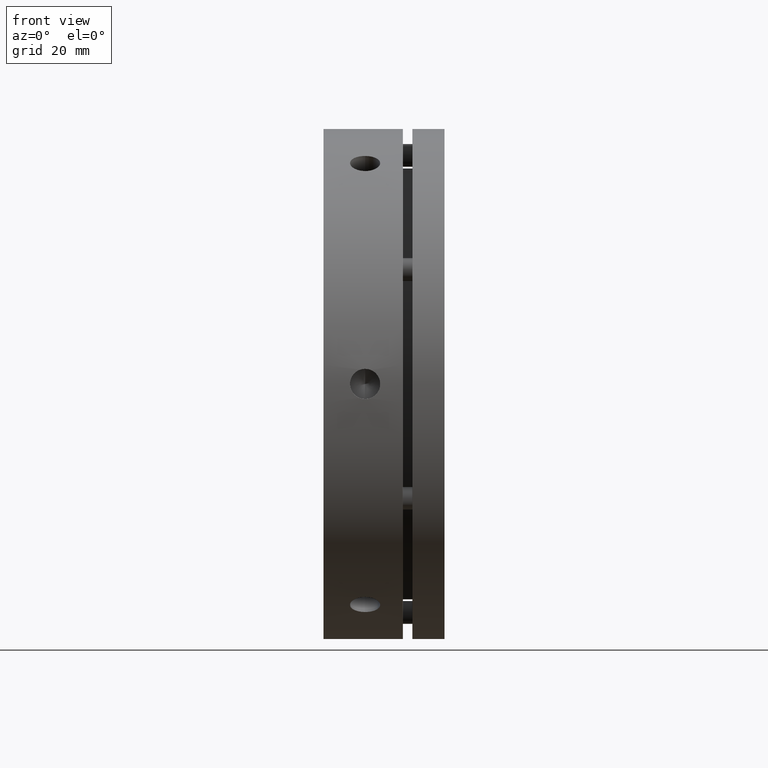
[diagram: clean part render]
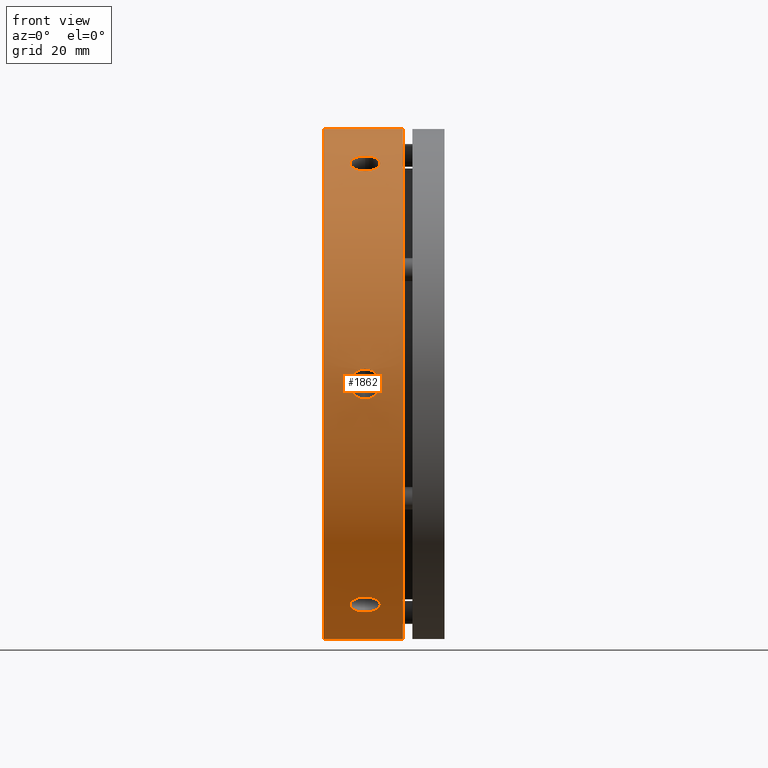
[diagram: same view with one face highlighted and labeled with its STEP entity id]
A machine part, front view. The second image highlights one B-rep face of the part: STEP entity #1862.
In plain terms, the highlighted cylindrical surface (partial cylindrical patch) has radius 67.5 mm, axis along (1, 0, 0).
Its self-contained STEP definition (entity closure, byte-faithful):
#394 = VECTOR ( 'NONE', #3730, 1000.000000000000000 ) ;
#398 = LINE ( 'NONE', #3724, #394 ) ;
#440 = VECTOR ( 'NONE', #3423, 1000.000000000000000 ) ;
#445 = LINE ( 'NONE', #3386, #440 ) ;
#568 = EDGE_CURVE ( 'NONE', #2120, #2115, #4736, .T. ) ;
#633 = EDGE_CURVE ( 'NONE', #2127, #2121, #1176, .T. ) ;
#782 = AXIS2_PLACEMENT_3D ( 'NONE', #2842, #2848, #2847 ) ;
#1003 = EDGE_CURVE ( 'NONE', #2103, #2104, #4746, .T. ) ;
#1018 = EDGE_CURVE ( 'NONE', #2114, #2122, #4484, .T. ) ;
#1022 = EDGE_CURVE ( 'NONE', #2107, #2108, #4751, .T. ) ;
#1070 = ORIENTED_EDGE ( 'NONE', *, *, #568, .T. ) ;
#1076 = ORIENTED_EDGE ( 'NONE', *, *, #633, .T. ) ;
#1081 = ORIENTED_EDGE ( 'NONE', *, *, #4285, .T. ) ;
#1092 = ORIENTED_EDGE ( 'NONE', *, *, #4269, .T. ) ;
#1098 = ORIENTED_EDGE ( 'NONE', *, *, #1003, .T. ) ;
#1144 = ORIENTED_EDGE ( 'NONE', *, *, #4347, .F. ) ;
#1146 = ORIENTED_EDGE ( 'NONE', *, *, #4270, .T. ) ;
#1148 = ORIENTED_EDGE ( 'NONE', *, *, #1018, .T. ) ;
#1176 = CIRCLE ( 'NONE', #4310, 67.50000000000000000 ) ;
#1244 = ORIENTED_EDGE ( 'NONE', *, *, #4272, .T. ) ;
#1296 = ORIENTED_EDGE ( 'NONE', *, *, #1022, .T. ) ;
#1315 = CARTESIAN_POINT ( 'NONE',  ( 11.26090793714404500, -30.22658700946592700, 60.35398443979639900 ) ) ;
#1322 = CARTESIAN_POINT ( 'NONE',  ( 11.52591283369941200, -30.24998062324704400, 60.34228449093968300 ) ) ;
#1327 = CARTESIAN_POINT ( 'NONE',  ( 10.99999999999998600, -30.22658700946592700, 60.35398443979640600 ) ) ;
#1328 = CARTESIAN_POINT ( 'NONE',  ( 12.03884198880588800, -30.34155442850207900, 60.29629093198488500 ) ) ;
#1329 = CARTESIAN_POINT ( 'NONE',  ( 12.28815119685501100, -30.40922675163503200, 60.26225193946581300 ) ) ;
#1330 = CARTESIAN_POINT ( 'NONE',  ( 12.77237875668080100, -30.58836339869727500, 60.17152237593163000 ) ) ;
#1331 = CARTESIAN_POINT ( 'NONE',  ( 13.00647556770923300, -30.70020854303621900, 60.11462567714681900 ) ) ;
#1332 = CARTESIAN_POINT ( 'NONE',  ( 13.43973112978456900, -30.95819358364240900, 59.98217464319808600 ) ) ;
#1333 = CARTESIAN_POINT ( 'NONE',  ( 13.64168093604262200, -31.10523086098995500, 59.90617268559046900 ) ) ;
#1334 = CARTESIAN_POINT ( 'NONE',  ( 14.01506595867558500, -31.43640913765133900, 59.73304858519659900 ) ) ;
#1335 = CARTESIAN_POINT ( 'NONE',  ( 14.18066491964190900, -31.61544218867688000, 59.63858461023469500 ) ) ;
#1336 = CARTESIAN_POINT ( 'NONE',  ( 14.47022002297181600, -31.99771129494706700, 59.43436237550554300 ) ) ;
#1337 = CARTESIAN_POINT ( 'NONE',  ( 14.59538461607226800, -32.20349093996196600, 59.32321567184563100 ) ) ;
#1338 = CARTESIAN_POINT ( 'NONE',  ( 14.79605033172389000, -32.62868623531968400, 59.09041868971299000 ) ) ;
#1339 = CARTESIAN_POINT ( 'NONE',  ( 14.87163962980802600, -32.84679003136334800, 58.96951817546114000 ) ) ;
#1340 = CARTESIAN_POINT ( 'NONE',  ( 14.97386132053187100, -33.29365371387105900, 58.71838137748136400 ) ) ;
#1341 = CARTESIAN_POINT ( 'NONE',  ( 15.00018324290823200, -33.52356061336501400, 58.58746213498268700 ) ) ;
#1342 = CARTESIAN_POINT ( 'NONE',  ( 14.99981481338055800, -33.98126887678008500, 58.32317893547953200 ) ) ;
#1343 = CARTESIAN_POINT ( 'NONE',  ( 14.97370272124640600, -34.20551458355013400, 58.19190758741443400 ) ) ;
#1344 = CARTESIAN_POINT ( 'NONE',  ( 14.87173392605369500, -34.64525160932046800, 57.93118225545304500 ) ) ;
#1345 = CARTESIAN_POINT ( 'NONE',  ( 14.79463212785195700, -34.86301030844568800, 57.80033863928942800 ) ) ;
#1346 = CARTESIAN_POINT ( 'NONE',  ( 14.59355659696136200, -35.27680719089368500, 57.54872291371749100 ) ) ;
#1347 = CARTESIAN_POINT ( 'NONE',  ( 14.47055934273477000, -35.47240792593640200, 57.42826428411591900 ) ) ;
#1348 = CARTESIAN_POINT ( 'NONE',  ( 14.18002743435036600, -35.84159123671504700, 57.19858040520351500 ) ) ;
#1349 = CARTESIAN_POINT ( 'NONE',  ( 14.01100402945903100, -36.01578113025335900, 57.08894412492419000 ) ) ;
#1350 = CARTESIAN_POINT ( 'NONE',  ( 13.64185372173521000, -36.32728791053472900, 56.89123117657188500 ) ) ;
#1351 = CARTESIAN_POINT ( 'NONE',  ( 13.44043357950982700, -36.46670496601903000, 56.80185577039633000 ) ) ;
#1352 = CARTESIAN_POINT ( 'NONE',  ( 13.00304389669707600, -36.71250841156247400, 56.64329718660927400 ) ) ;
#1353 = CARTESIAN_POINT ( 'NONE',  ( 12.77029148319261900, -36.81665183097442200, 56.57556097149676300 ) ) ;
#1354 = CARTESIAN_POINT ( 'NONE',  ( 12.28893648643766700, -36.98371311033363900, 56.46649374501019000 ) ) ;
#1355 = CARTESIAN_POINT ( 'NONE',  ( 12.03677718526620000, -37.04790109451409600, 56.42433569025841000 ) ) ;
#1356 = CARTESIAN_POINT ( 'NONE',  ( 11.52045896052088200, -37.13365425629004300, 56.36793729745820500 ) ) ;
#1357 = CARTESIAN_POINT ( 'NONE',  ( 11.26090770552999500, -37.15479023974144500, 56.35398443979641300 ) ) ;
#1358 = CARTESIAN_POINT ( 'NONE',  ( 10.99999999999998600, -37.15479023974143800, 56.35398443979640600 ) ) ;
#1480 = CARTESIAN_POINT ( 'NONE',  ( 20.99999999999998600, 0.0000000000000000000, 0.0000000000000000000 ) ) ;
#1481 = DIRECTION ( 'NONE',  ( -1.000000000000000000, -0.0000000000000000000, -0.0000000000000000000 ) ) ;
#1482 = DIRECTION ( 'NONE',  ( 0.0000000000000000000, 0.0000000000000000000, -1.000000000000000000 ) ) ;
#1610 = CARTESIAN_POINT ( 'NONE',  ( 11.26090793714404700, -37.15479023974145900, -56.35398443979638500 ) ) ;
#1617 = CARTESIAN_POINT ( 'NONE',  ( 11.52591283369941200, -37.13296097991798900, -56.36839392918877700 ) ) ;
#1621 = CARTESIAN_POINT ( 'NONE',  ( 10.99999999999998600, -37.15479023974146600, -56.35398443979639200 ) ) ;
#1622 = CARTESIAN_POINT ( 'NONE',  ( 12.03884198880588800, -37.04734248682517300, -56.42470239138347700 ) ) ;
#1623 = CARTESIAN_POINT ( 'NONE',  ( 12.28815119685501000, -36.98402769301793600, -56.46628884609018000 ) ) ;
#1624 = CARTESIAN_POINT ( 'NONE',  ( 12.77237875668080100, -36.81588526259196200, -56.57606095142775600 ) ) ;
#1625 = CARTESIAN_POINT ( 'NONE',  ( 13.00647556770923300, -36.71068870388337000, -56.64447333832281800 ) ) ;
#1626 = CARTESIAN_POINT ( 'NONE',  ( 13.43973112978456900, -36.46699022342315300, -56.80166942030976400 ) ) ;
#1627 = CARTESIAN_POINT ( 'NONE',  ( 13.64168093604262200, -36.32765195872384100, -56.89100645899225100 ) ) ;
#1628 = CARTESIAN_POINT ( 'NONE',  ( 14.01506595867558500, -36.01213295144473400, -57.09125320956561500 ) ) ;
#1629 = CARTESIAN_POINT ( 'NONE',  ( 14.18066491964190800, -35.84080822387248600, -57.19906839238982600 ) ) ;
#1630 = CARTESIAN_POINT ( 'NONE',  ( 14.47022002297181100, -35.47281202744432700, -57.42801203213720400 ) ) ;
#1631 = CARTESIAN_POINT ( 'NONE',  ( 14.59538461607227000, -35.27366633602049000, -57.55064908047187100 ) ) ;
#1632 = CARTESIAN_POINT ( 'NONE',  ( 14.79605033172389000, -34.85946058789038900, -57.80248051675495400 ) ) ;
#1633 = CARTESIAN_POINT ( 'NONE',  ( 14.87163962980802800, -34.64570577319586400, -57.93091368766469200 ) ) ;
#1634 = CARTESIAN_POINT ( 'NONE',  ( 14.97386132053187400, -34.20478308506646700, -58.19234058975514000 ) ) ;
#1635 = CARTESIAN_POINT ( 'NONE',  ( 15.00018324290823600, -33.97645024547137600, -58.32598618397286600 ) ) ;
#1636 = CARTESIAN_POINT ( 'NONE',  ( 14.99981481338055800, -33.51872014920068900, -58.59023156786080500 ) ) ;
#1637 = CARTESIAN_POINT ( 'NONE',  ( 14.97370272124640600, -33.29291297360227700, -58.71879837258071400 ) ) ;
#1638 = CARTESIAN_POINT ( 'NONE',  ( 14.87173392605369700, -32.84724969982841700, -58.96925914190175900 ) ) ;
#1639 = CARTESIAN_POINT ( 'NONE',  ( 14.79463212785195500, -32.62505645474507800, -59.09242189915740100 ) ) ;
#1640 = CARTESIAN_POINT ( 'NONE',  ( 14.59355659696135800, -32.20025240318413800, -59.32497264857820300 ) ) ;
#1641 = CARTESIAN_POINT ( 'NONE',  ( 14.47055934273477200, -31.99813180232276400, -59.43413853932334200 ) ) ;
#1642 = CARTESIAN_POINT ( 'NONE',  ( 14.18002743435036800, -31.61462807295555800, -59.63901872565468700 ) ) ;
#1643 = CARTESIAN_POINT ( 'NONE',  ( 14.01100402945902900, -31.43258532228806200, -59.73505345840170800 ) ) ;
#1644 = CARTESIAN_POINT ( 'NONE',  ( 13.64185372173520400, -31.10560749621716100, -59.90596976940034300 ) ) ;
#1645 = CARTESIAN_POINT ( 'NONE',  ( 13.44043357950982000, -30.95849759625342700, -59.98202077808279900 ) ) ;
#1646 = CARTESIAN_POINT ( 'NONE',  ( 13.00304389669707000, -30.69828011193403900, -60.11561351436763800 ) ) ;
#1647 = CARTESIAN_POINT ( 'NONE',  ( 12.77029148319261200, -30.58754711918441100, -60.17193625365909100 ) ) ;
#1648 = CARTESIAN_POINT ( 'NONE',  ( 12.28893648643766300, -30.40956149064712500, -60.26208195232962300 ) ) ;
#1649 = CARTESIAN_POINT ( 'NONE',  ( 12.03677718526620500, -30.34095755216771900, -60.29659134987169700 ) ) ;
#1650 = CARTESIAN_POINT ( 'NONE',  ( 11.52045896052088700, -30.24923853038215100, -60.34265657002443100 ) ) ;
#1651 = CARTESIAN_POINT ( 'NONE',  ( 11.26090770552999700, -30.22658700946595500, -60.35398443979639900 ) ) ;
#1652 = CARTESIAN_POINT ( 'NONE',  ( 10.99999999999998600, -30.22658700946595200, -60.35398443979639200 ) ) ;
#1694 = CARTESIAN_POINT ( 'NONE',  ( -1.734723475976807100E-014, 0.0000000000000000000, 0.0000000000000000000 ) ) ;
#1695 = DIRECTION ( 'NONE',  ( 1.000000000000000000, 0.0000000000000000000, 0.0000000000000000000 ) ) ;
#1696 = DIRECTION ( 'NONE',  ( 0.0000000000000000000, 0.0000000000000000000, -1.000000000000000000 ) ) ;
#1697 = CARTESIAN_POINT ( 'NONE',  ( 11.26090793714404500, -67.38137724920736100, 4.000000000000009800 ) ) ;
#1704 = CARTESIAN_POINT ( 'NONE',  ( 11.52591283369941200, -67.38294160316502300, 3.973890561750877300 ) ) ;
#1708 = CARTESIAN_POINT ( 'NONE',  ( 10.99999999999998600, -67.38137724920737500, 4.000000000000009800 ) ) ;
#1709 = CARTESIAN_POINT ( 'NONE',  ( 12.03884198880588800, -67.38889691532723700, 3.871588540601420500 ) ) ;
#1710 = CARTESIAN_POINT ( 'NONE',  ( 12.28815119685501100, -67.39325444465296800, 3.795963093375624500 ) ) ;
#1711 = CARTESIAN_POINT ( 'NONE',  ( 12.77237875668080100, -67.40424866128921600, 3.595461424503875400 ) ) ;
#1712 = CARTESIAN_POINT ( 'NONE',  ( 13.00647556770923400, -67.41089724691957500, 3.470152338824002300 ) ) ;
#1713 = CARTESIAN_POINT ( 'NONE',  ( 13.43973112978457100, -67.42518380706556500, 3.180505222888316800 ) ) ;
#1714 = CARTESIAN_POINT ( 'NONE',  ( 13.64168093604262700, -67.43288281971376800, 3.015166226598228000 ) ) ;
#1715 = CARTESIAN_POINT ( 'NONE',  ( 14.01506595867558900, -67.44854208909605100, 2.641795375630985100 ) ) ;
#1716 = CARTESIAN_POINT ( 'NONE',  ( 14.18066491964191100, -67.45625041254935200, 2.439516217844869500 ) ) ;
#1717 = CARTESIAN_POINT ( 'NONE',  ( 14.47022002297181600, -67.47052332239138700, 2.006350343368344700 ) ) ;
#1718 = CARTESIAN_POINT ( 'NONE',  ( 14.59538461607227200, -67.47715727598243500, 1.772566591373748300 ) ) ;
#1719 = CARTESIAN_POINT ( 'NONE',  ( 14.79605033172388500, -67.48814682321005900, 1.287938172958012600 ) ) ;
#1720 = CARTESIAN_POINT ( 'NONE',  ( 14.87163962980802600, -67.49249580455918400, 1.038604487796452600 ) ) ;
#1721 = CARTESIAN_POINT ( 'NONE',  ( 14.97386132053187400, -67.49843679893750400, 0.5260407877262315300 ) ) ;
#1722 = CARTESIAN_POINT ( 'NONE',  ( 15.00018324290823600, -67.50001085883636200, 0.2614759510097940900 ) ) ;
#1723 = CARTESIAN_POINT ( 'NONE',  ( 14.99981481338055600, -67.49998902598073900, -0.2670526323812898500 ) ) ;
#1724 = CARTESIAN_POINT ( 'NONE',  ( 14.97370272124640400, -67.49842755715238200, -0.5268907851662810700 ) ) ;
#1725 = CARTESIAN_POINT ( 'NONE',  ( 14.87173392605369100, -67.49250130914884900, -1.038076886448712900 ) ) ;
#1726 = CARTESIAN_POINT ( 'NONE',  ( 14.79463212785195300, -67.48806676319074400, -1.292083259868005200 ) ) ;
#1727 = CARTESIAN_POINT ( 'NONE',  ( 14.59355659696135500, -67.47705959407780100, -1.776249734860747800 ) ) ;
#1728 = CARTESIAN_POINT ( 'NONE',  ( 14.47055934273477000, -67.47053972825912600, -2.005874255207424900 ) ) ;
#1729 = CARTESIAN_POINT ( 'NONE',  ( 14.18002743435036500, -67.45621930967055800, -2.440438320451179300 ) ) ;
#1730 = CARTESIAN_POINT ( 'NONE',  ( 14.01100402945902700, -67.44836645254137900, -2.646109333477535400 ) ) ;
#1731 = CARTESIAN_POINT ( 'NONE',  ( 13.64185372173520400, -67.43289540675186800, -3.014738592828453800 ) ) ;
#1732 = CARTESIAN_POINT ( 'NONE',  ( 13.44043357950982000, -67.42520256227244600, -3.180165007686465800 ) ) ;
#1733 = CARTESIAN_POINT ( 'NONE',  ( 13.00304389669706500, -67.41078852349647800, -3.472316327758345500 ) ) ;
#1734 = CARTESIAN_POINT ( 'NONE',  ( 12.77029148319261200, -67.40419895015880100, -3.596375282162336300 ) ) ;
#1735 = CARTESIAN_POINT ( 'NONE',  ( 12.28893648643766300, -67.39327460098073200, -3.795588207319422900 ) ) ;
#1736 = CARTESIAN_POINT ( 'NONE',  ( 12.03677718526620100, -67.38885864668178300, -3.872255659613306200 ) ) ;
#1737 = CARTESIAN_POINT ( 'NONE',  ( 11.52045896052088200, -67.38289278667218700, -3.974719272566217500 ) ) ;
#1738 = CARTESIAN_POINT ( 'NONE',  ( 11.26090770552999300, -67.38137724920736100, -3.999999999999990700 ) ) ;
#1739 = CARTESIAN_POINT ( 'NONE',  ( 10.99999999999998600, -67.38137724920737500, -3.999999999999990700 ) ) ;
#1862 = ADVANCED_FACE ( 'NONE', ( #4378, #4374, #4377, #4375 ), #4367, .T. ) ;
#2103 = VERTEX_POINT ( 'NONE', #3273 ) ;
#2104 = VERTEX_POINT ( 'NONE', #3274 ) ;
#2107 = VERTEX_POINT ( 'NONE', #3277 ) ;
#2108 = VERTEX_POINT ( 'NONE', #3278 ) ;
#2114 = VERTEX_POINT ( 'NONE', #3284 ) ;
#2115 = VERTEX_POINT ( 'NONE', #3285 ) ;
#2120 = VERTEX_POINT ( 'NONE', #3290 ) ;
#2121 = VERTEX_POINT ( 'NONE', #3291 ) ;
#2122 = VERTEX_POINT ( 'NONE', #3292 ) ;
#2127 = VERTEX_POINT ( 'NONE', #3297 ) ;
#2141 = EDGE_LOOP ( 'NONE', ( #1146, #1070 ) ) ;
#2143 = EDGE_LOOP ( 'NONE', ( #1092, #1296 ) ) ;
#2144 = EDGE_LOOP ( 'NONE', ( #1081, #1098 ) ) ;
#2146 = EDGE_LOOP ( 'NONE', ( #1144, #1148, #1244, #1076 ) ) ;
#2710 = AXIS2_PLACEMENT_3D ( 'NONE', #1694, #1695, #1696 ) ;
#2842 = CARTESIAN_POINT ( 'NONE',  ( 15.99999999999998200, 0.0000000000000000000, 0.0000000000000000000 ) ) ;
#2847 = DIRECTION ( 'NONE',  ( 0.0000000000000000000, 0.0000000000000000000, -1.000000000000000000 ) ) ;
#2848 = DIRECTION ( 'NONE',  ( 1.000000000000000000, 0.0000000000000000000, 0.0000000000000000000 ) ) ;
#3273 = CARTESIAN_POINT ( 'NONE',  ( 10.99999999999998600, -37.15479023974146600, -56.35398443979639200 ) ) ;
#3274 = CARTESIAN_POINT ( 'NONE',  ( 10.99999999999998600, -30.22658700946595200, -60.35398443979639200 ) ) ;
#3277 = CARTESIAN_POINT ( 'NONE',  ( 10.99999999999998600, -67.38137724920737500, 4.000000000000009800 ) ) ;
#3278 = CARTESIAN_POINT ( 'NONE',  ( 10.99999999999998600, -67.38137724920737500, -3.999999999999990700 ) ) ;
#3284 = CARTESIAN_POINT ( 'NONE',  ( -1.734723475976807100E-014, 8.266365894244635100E-015, 67.50000000000000000 ) ) ;
#3285 = CARTESIAN_POINT ( 'NONE',  ( 10.99999999999998600, -37.15479023974143800, 56.35398443979640600 ) ) ;
#3290 = CARTESIAN_POINT ( 'NONE',  ( 10.99999999999998600, -30.22658700946592700, 60.35398443979640600 ) ) ;
#3291 = CARTESIAN_POINT ( 'NONE',  ( 20.99999999999998600, 8.266365894244635100E-015, 67.50000000000000000 ) ) ;
#3292 = CARTESIAN_POINT ( 'NONE',  ( -1.734723475976807100E-014, 0.0000000000000000000, -67.50000000000000000 ) ) ;
#3297 = CARTESIAN_POINT ( 'NONE',  ( 20.99999999999998600, 0.0000000000000000000, -67.50000000000000000 ) ) ;
#3346 = CARTESIAN_POINT ( 'NONE',  ( 10.73909229457169600, -67.38137724920738900, -3.999999999999990700 ) ) ;
#3351 = CARTESIAN_POINT ( 'NONE',  ( 10.99999999999998600, -67.38137724920737500, -3.999999999999990700 ) ) ;
#3352 = CARTESIAN_POINT ( 'NONE',  ( 10.99999999999998600, -37.15479023974143800, 56.35398443979640600 ) ) ;
#3353 = CARTESIAN_POINT ( 'NONE',  ( 10.73909229457170000, -37.15479023974143800, 56.35398443979639900 ) ) ;
#3354 = CARTESIAN_POINT ( 'NONE',  ( 10.47408763467157100, -67.38294160032730000, -3.973890608714793600 ) ) ;
#3355 = CARTESIAN_POINT ( 'NONE',  ( 9.961158909440495500, -67.38889690229801500, -3.871588766204661100 ) ) ;
#3356 = CARTESIAN_POINT ( 'NONE',  ( 9.711849904074711000, -67.39325442428891200, -3.795963450220726500 ) ) ;
#3357 = CARTESIAN_POINT ( 'NONE',  ( 9.227622722682749400, -67.40424862306865400, -3.595462136067280500 ) ) ;
#3358 = CARTESIAN_POINT ( 'NONE',  ( 8.993526050400468800, -67.41089719912021400, -3.470153257375516300 ) ) ;
#3359 = CARTESIAN_POINT ( 'NONE',  ( 8.560270715125978900, -67.42518374067221000, -3.180506619490605800 ) ) ;
#3360 = CARTESIAN_POINT ( 'NONE',  ( 8.358320997279008700, -67.43288274413103500, -3.015167897203705900 ) ) ;
#3361 = CARTESIAN_POINT ( 'NONE',  ( 7.984936087301695000, -67.44854199779239000, -2.641797684170610800 ) ) ;
#3362 = CARTESIAN_POINT ( 'NONE',  ( 7.819337065288737100, -67.45625031883602700, -2.439518780513390900 ) ) ;
#3363 = CARTESIAN_POINT ( 'NONE',  ( 7.529781849465393000, -67.47052322596523800, -2.006353551202726000 ) ) ;
#3364 = CARTESIAN_POINT ( 'NONE',  ( 7.404617164997528500, -67.47715718081893500, -1.772570174284384000 ) ) ;
#3365 = CARTESIAN_POINT ( 'NONE',  ( 7.203951095060022100, -67.48814674269408400, -1.287942337333857000 ) ) ;
#3366 = CARTESIAN_POINT ( 'NONE',  ( 7.128361585335441400, -67.49249573465603200, -1.038608952718378400 ) ) ;
#3367 = CARTESIAN_POINT ( 'NONE',  ( 7.026139370803330800, -67.49843675803855100, -0.5260458823085083500 ) ) ;
#3368 = CARTESIAN_POINT ( 'NONE',  ( 6.999817124770879100, -67.50001083704798100, -0.2614818767405222000 ) ) ;
#3369 = CARTESIAN_POINT ( 'NONE',  ( 7.000184811102104600, -67.49998904823363000, 0.2670473025547198100 ) ) ;
#3370 = CARTESIAN_POINT ( 'NONE',  ( 7.026296595522172300, -67.49842759757579800, 0.5268857423858576100 ) ) ;
#3371 = CARTESIAN_POINT ( 'NONE',  ( 7.128264857095052400, -67.49250137915493000, 1.038072403776828100 ) ) ;
#3372 = CARTESIAN_POINT ( 'NONE',  ( 7.205366418610818600, -67.48806684514468700, 1.292079044559674800 ) ) ;
#3373 = CARTESIAN_POINT ( 'NONE',  ( 7.406441644998075400, -67.47705968793037800, 1.776246217052297700 ) ) ;
#3374 = CARTESIAN_POINT ( 'NONE',  ( 7.529438794384551800, -67.47053982423439300, 2.005871059801216800 ) ) ;
#3375 = CARTESIAN_POINT ( 'NONE',  ( 7.819970561549339100, -67.45621940430018500, 2.440435731802457200 ) ) ;
#3376 = CARTESIAN_POINT ( 'NONE',  ( 7.988993962148468200, -67.44836654208234000, 2.646107071953352400 ) ) ;
#3377 = CARTESIAN_POINT ( 'NONE',  ( 8.358144355942116000, -67.43289548194677300, 3.014736929182944400 ) ) ;
#3378 = CARTESIAN_POINT ( 'NONE',  ( 8.559564572804667600, -67.42520262882160900, 3.180163607477054700 ) ) ;
#3379 = CARTESIAN_POINT ( 'NONE',  ( 8.996954457991631000, -67.41078857205796700, 3.472315394844187200 ) ) ;
#3380 = CARTESIAN_POINT ( 'NONE',  ( 9.229707056351237800, -67.40419898787723700, 3.596374580006900700 ) ) ;
#3381 = CARTESIAN_POINT ( 'NONE',  ( 9.711062411282048500, -67.39327462142367200, 3.795587848863778200 ) ) ;
#3382 = CARTESIAN_POINT ( 'NONE',  ( 9.963221900934721400, -67.38885865987282400, 3.872255431270556600 ) ) ;
#3383 = CARTESIAN_POINT ( 'NONE',  ( 10.47954057883766200, -67.38289278936230200, 3.974719228150472200 ) ) ;
#3384 = CARTESIAN_POINT ( 'NONE',  ( 10.73909206295764600, -67.38137724920740400, 4.000000000000010700 ) ) ;
#3385 = CARTESIAN_POINT ( 'NONE',  ( 10.99999999999998600, -67.38137724920737500, 4.000000000000009800 ) ) ;
#3386 = CARTESIAN_POINT ( 'NONE',  ( 15.99999999999998200, 0.0000000000000000000, -67.50000000000000000 ) ) ;
#3388 = CARTESIAN_POINT ( 'NONE',  ( 10.47408763467157300, -37.13296101917107700, 56.36839390324930600 ) ) ;
#3389 = CARTESIAN_POINT ( 'NONE',  ( 9.961158909440495500, -37.04734267568868900, 56.42470226729820100 ) ) ;
#3390 = CARTESIAN_POINT ( 'NONE',  ( 9.711849904074711000, -36.98402799187283600, 56.46628865003184200 ) ) ;
#3391 = CARTESIAN_POINT ( 'NONE',  ( 9.227622722682754700, -36.81588585971366700, 56.57606056254610400 ) ) ;
#3392 = CARTESIAN_POINT ( 'NONE',  ( 8.993526050400472400, -36.71068947547263400, 56.64447283765162000 ) ) ;
#3393 = CARTESIAN_POINT ( 'NONE',  ( 8.560270715125977100, -36.46699139971953200, 56.80166866451030200 ) ) ;
#3394 = CARTESIAN_POINT ( 'NONE',  ( 8.358320997279006900, -36.32765336771923600, 56.89100555823292600 ) ) ;
#3395 = CARTESIAN_POINT ( 'NONE',  ( 7.984936087301691500, -36.01213490504684200, 57.09125197622452000 ) ) ;
#3396 = CARTESIAN_POINT ( 'NONE',  ( 7.819337065288733500, -35.84081039635184100, 57.19906702989742800 ) ) ;
#3397 = CARTESIAN_POINT ( 'NONE',  ( 7.529781849465386800, -35.47281475729730700, 57.42801034471254000 ) ) ;
#3398 = CARTESIAN_POINT ( 'NONE',  ( 7.404617164997530300, -35.27366939133035100, 57.55064720660254100 ) ) ;
#3399 = CARTESIAN_POINT ( 'NONE',  ( 7.203951095060025600, -34.85946415408767500, 57.80247836483814400 ) ) ;
#3400 = CARTESIAN_POINT ( 'NONE',  ( 7.128361585335437800, -34.64570960498007000, 57.93091139466579900 ) ) ;
#3401 = CARTESIAN_POINT ( 'NONE',  ( 7.026139370803330000, -34.20478747665465100, 58.19233800704449100 ) ) ;
#3402 = CARTESIAN_POINT ( 'NONE',  ( 6.999817124770880000, -33.97645536641051200, 58.32598320223822700 ) ) ;
#3403 = CARTESIAN_POINT ( 'NONE',  ( 7.000184811102105400, -33.51872477609230600, 58.59022892221906900 ) ) ;
#3404 = CARTESIAN_POINT ( 'NONE',  ( 7.026296595522172300, -33.29291736098993200, 58.71879588619820100 ) ) ;
#3405 = CARTESIAN_POINT ( 'NONE',  ( 7.128264857095056000, -32.84725361693915600, 58.96925696119284100 ) ) ;
#3406 = CARTESIAN_POINT ( 'NONE',  ( 7.205366418610818600, -32.62506014628614500, 59.09241986247746300 ) ) ;
#3407 = CARTESIAN_POINT ( 'NONE',  ( 7.406441644998075400, -32.20025549662188500, 59.32497097095269100 ) ) ;
#3408 = CARTESIAN_POINT ( 'NONE',  ( 7.529438794384552700, -31.99813461761332400, 59.43413702473723200 ) ) ;
#3409 = CARTESIAN_POINT ( 'NONE',  ( 7.819970561549344400, -31.61463036210591300, 59.63901751328200600 ) ) ;
#3410 = CARTESIAN_POINT ( 'NONE',  ( 7.988993962148473600, -31.43258732559592900, 59.73505240518436200 ) ) ;
#3411 = CARTESIAN_POINT ( 'NONE',  ( 8.358144355942116000, -31.10560897457386900, 59.90596900269827100 ) ) ;
#3412 = CARTESIAN_POINT ( 'NONE',  ( 8.559564572804665900, -30.95849884214492300, 59.98202013561136400 ) ) ;
#3413 = CARTESIAN_POINT ( 'NONE',  ( 8.996954457991625600, -30.69828094414213400, 60.11561308996602500 ) ) ;
#3414 = CARTESIAN_POINT ( 'NONE',  ( 9.229707056351232500, -30.58754774612804900, 60.17193593524646600 ) ) ;
#3415 = CARTESIAN_POINT ( 'NONE',  ( 9.711062411282048500, -30.40956181130026400, 60.26208179080586500 ) ) ;
#3416 = CARTESIAN_POINT ( 'NONE',  ( 9.963221900934719600, -30.34095775651384800, 60.29659124712411300 ) ) ;
#3417 = CARTESIAN_POINT ( 'NONE',  ( 10.47954057883765300, -30.24923857019236800, 60.34265655014625900 ) ) ;
#3418 = CARTESIAN_POINT ( 'NONE',  ( 10.73909206295764400, -30.22658700946593100, 60.35398443979641300 ) ) ;
#3419 = CARTESIAN_POINT ( 'NONE',  ( 10.99999999999998600, -30.22658700946592700, 60.35398443979640600 ) ) ;
#3423 = DIRECTION ( 'NONE',  ( 1.000000000000000000, 0.0000000000000000000, 0.0000000000000000000 ) ) ;
#3639 = CARTESIAN_POINT ( 'NONE',  ( 10.73909229457170000, -30.22658700946595900, -60.35398443979639200 ) ) ;
#3643 = CARTESIAN_POINT ( 'NONE',  ( 10.99999999999998600, -30.22658700946595200, -60.35398443979639200 ) ) ;
#3645 = CARTESIAN_POINT ( 'NONE',  ( 10.47408763467157300, -30.24998058115624700, -60.34228451196408100 ) ) ;
#3646 = CARTESIAN_POINT ( 'NONE',  ( 9.961158909440499100, -30.34155422660932200, -60.29629103350284000 ) ) ;
#3647 = CARTESIAN_POINT ( 'NONE',  ( 9.711849904074714600, -30.40922643241608700, -60.26225210025256700 ) ) ;
#3648 = CARTESIAN_POINT ( 'NONE',  ( 9.227622722682751200, -30.58836276335501800, -60.17152269861336600 ) ) ;
#3649 = CARTESIAN_POINT ( 'NONE',  ( 8.993526050400468800, -30.70020772364760500, -60.11462609502712700 ) ) ;
#3650 = CARTESIAN_POINT ( 'NONE',  ( 8.560270715125973600, -30.95819234095268200, -59.98217528400089500 ) ) ;
#3651 = CARTESIAN_POINT ( 'NONE',  ( 8.358320997279006900, -31.10522937641181000, -59.90617345543663000 ) ) ;
#3652 = CARTESIAN_POINT ( 'NONE',  ( 7.984936087301691500, -31.43640709274556100, -59.73304966039511800 ) ) ;
#3653 = CARTESIAN_POINT ( 'NONE',  ( 7.819337065288735300, -31.61543992248419600, -59.63858581041082400 ) ) ;
#3654 = CARTESIAN_POINT ( 'NONE',  ( 7.529781849465388500, -31.99770846866795200, -59.43436389591526800 ) ) ;
#3655 = CARTESIAN_POINT ( 'NONE',  ( 7.404617164997528500, -32.20348778948859100, -59.32321738088692300 ) ) ;
#3656 = CARTESIAN_POINT ( 'NONE',  ( 7.203951095060024700, -32.62868258860640900, -59.09042070217199000 ) ) ;
#3657 = CARTESIAN_POINT ( 'NONE',  ( 7.128361585335439600, -32.84678612967595500, -58.96952034738416900 ) ) ;
#3658 = CARTESIAN_POINT ( 'NONE',  ( 7.026139370803329100, -33.29364928138393500, -58.71838388935299900 ) ) ;
#3659 = CARTESIAN_POINT ( 'NONE',  ( 6.999817124770880900, -33.52355547063747600, -58.58746507897873800 ) ) ;
#3660 = CARTESIAN_POINT ( 'NONE',  ( 7.000184811102104600, -33.98126427214131700, -58.32318161966433900 ) ) ;
#3661 = CARTESIAN_POINT ( 'NONE',  ( 7.026296595522172300, -34.20551023658590100, -58.19191014381235800 ) ) ;
#3662 = CARTESIAN_POINT ( 'NONE',  ( 7.128264857095054200, -34.64524776221578200, -57.93118455741601700 ) ) ;
#3663 = CARTESIAN_POINT ( 'NONE',  ( 7.205366418610820400, -34.86300669885858400, -57.80034081791777100 ) ) ;
#3664 = CARTESIAN_POINT ( 'NONE',  ( 7.406441644998076300, -35.27680419130848600, -57.54872475390040200 ) ) ;
#3665 = CARTESIAN_POINT ( 'NONE',  ( 7.529438794384552700, -35.47240520662107600, -57.42826596493601000 ) ) ;
#3666 = CARTESIAN_POINT ( 'NONE',  ( 7.819970561549342700, -35.84158904219430800, -57.19858178147954000 ) ) ;
#3667 = CARTESIAN_POINT ( 'NONE',  ( 7.988993962148477100, -36.01577921648646500, -57.08894533323103100 ) ) ;
#3668 = CARTESIAN_POINT ( 'NONE',  ( 8.358144355942121400, -36.32728650737291800, -56.89123207351531200 ) ) ;
#3669 = CARTESIAN_POINT ( 'NONE',  ( 8.559564572804664100, -36.46670378667668200, -56.80185652813428700 ) ) ;
#3670 = CARTESIAN_POINT ( 'NONE',  ( 8.996954457991629200, -36.71250762791585500, -56.64329769512182400 ) ) ;
#3671 = CARTESIAN_POINT ( 'NONE',  ( 9.229707056351225300, -36.81665124174919200, -56.57556135523955700 ) ) ;
#3672 = CARTESIAN_POINT ( 'NONE',  ( 9.711062411282041400, -36.98371281012340000, -56.46649394194209000 ) ) ;
#3673 = CARTESIAN_POINT ( 'NONE',  ( 9.963221900934719600, -37.04790090335899300, -56.42433581585353900 ) ) ;
#3674 = CARTESIAN_POINT ( 'NONE',  ( 10.47954057883765300, -37.13365421916994100, -56.36793732199578200 ) ) ;
#3675 = CARTESIAN_POINT ( 'NONE',  ( 10.73909206295764400, -37.15479023974145200, -56.35398443979638500 ) ) ;
#3676 = CARTESIAN_POINT ( 'NONE',  ( 10.99999999999998600, -37.15479023974146600, -56.35398443979639200 ) ) ;
#3724 = CARTESIAN_POINT ( 'NONE',  ( 15.99999999999998200, 8.266365894244635100E-015, 67.50000000000000000 ) ) ;
#3730 = DIRECTION ( 'NONE',  ( 1.000000000000000000, 0.0000000000000000000, 0.0000000000000000000 ) ) ;
#4269 = EDGE_CURVE ( 'NONE', #2108, #2107, #4752, .T. ) ;
#4270 = EDGE_CURVE ( 'NONE', #2115, #2120, #4737, .T. ) ;
#4272 = EDGE_CURVE ( 'NONE', #2122, #2127, #445, .T. ) ;
#4285 = EDGE_CURVE ( 'NONE', #2104, #2103, #4739, .T. ) ;
#4310 = AXIS2_PLACEMENT_3D ( 'NONE', #1480, #1481, #1482 ) ;
#4347 = EDGE_CURVE ( 'NONE', #2114, #2121, #398, .T. ) ;
#4367 = CYLINDRICAL_SURFACE ( 'NONE', #782, 67.50000000000000000 ) ;
#4374 = FACE_BOUND ( 'NONE', #2141, .T. ) ;
#4375 = FACE_BOUND ( 'NONE', #2144, .T. ) ;
#4377 = FACE_BOUND ( 'NONE', #2143, .T. ) ;
#4378 = FACE_OUTER_BOUND ( 'NONE', #2146, .T. ) ;
#4484 = CIRCLE ( 'NONE', #2710, 67.50000000000000000 ) ;
#4736 = B_SPLINE_CURVE_WITH_KNOTS ( 'NONE', 3,
 ( #1327, #1315, #1322, #1328, #1329, #1330, #1331, #1332, #1333, #1334, #1335, #1336, #1337, #1338, #1339, #1340, #1341, #1342, #1343, #1344, #1345, #1346, #1347, #1348, #1349, #1350, #1351, #1352, #1353, #1354, #1355, #1356, #1357, #1358 ),
 .UNSPECIFIED., .F., .F.,
 ( 4, 2, 2, 2, 2, 2, 2, 2, 2, 2, 2, 2, 2, 2, 2, 2, 4 ),
 ( 0.006255709293877661700, 0.007037330039340209500, 0.007818950784802757400, 0.008600571530265305200, 0.009382192275727854700, 0.01016381302119040300, 0.01094543376665295000, 0.01172705451211550000, 0.01250867525757804600, 0.01329029600304059600, 0.01407191674850314300, 0.01485353749396569100, 0.01563515823942823700, 0.01641677898489078700, 0.01719839973035333600, 0.01798002047581588600, 0.01876164122127843200 ),
 .UNSPECIFIED. ) ;
#4737 = B_SPLINE_CURVE_WITH_KNOTS ( 'NONE', 3,
 ( #3352, #3353, #3388, #3389, #3390, #3391, #3392, #3393, #3394, #3395, #3396, #3397, #3398, #3399, #3400, #3401, #3402, #3403, #3404, #3405, #3406, #3407, #3408, #3409, #3410, #3411, #3412, #3413, #3414, #3415, #3416, #3417, #3418, #3419 ),
 .UNSPECIFIED., .F., .F.,
 ( 4, 2, 2, 2, 2, 2, 2, 2, 2, 2, 2, 2, 2, 2, 2, 2, 4 ),
 ( 0.01876164122127843200, 0.01954326196643625700, 0.02032488271159408100, 0.02110650345675190600, 0.02188812420190973000, 0.02266974494706755500, 0.02345136569222538300, 0.02423298643738320400, 0.02501460718254103200, 0.02579622792769885300, 0.02657784867285668100, 0.02735946941801450200, 0.02814109016317233000, 0.02892271090833015500, 0.02970433165348797900, 0.03048595239864580400, 0.03126757314380362900 ),
 .UNSPECIFIED. ) ;
#4739 = B_SPLINE_CURVE_WITH_KNOTS ( 'NONE', 3,
 ( #3643, #3639, #3645, #3646, #3647, #3648, #3649, #3650, #3651, #3652, #3653, #3654, #3655, #3656, #3657, #3658, #3659, #3660, #3661, #3662, #3663, #3664, #3665, #3666, #3667, #3668, #3669, #3670, #3671, #3672, #3673, #3674, #3675, #3676 ),
 .UNSPECIFIED., .F., .F.,
 ( 4, 2, 2, 2, 2, 2, 2, 2, 2, 2, 2, 2, 2, 2, 2, 2, 4 ),
 ( 0.01876164122127844300, 0.01954326196643627100, 0.02032488271159409500, 0.02110650345675192300, 0.02188812420190975100, 0.02266974494706757600, 0.02345136569222540400, 0.02423298643738322800, 0.02501460718254105300, 0.02579622792769887700, 0.02657784867285670200, 0.02735946941801453000, 0.02814109016317235100, 0.02892271090833017900, 0.02970433165348800000, 0.03048595239864582500, 0.03126757314380364900 ),
 .UNSPECIFIED. ) ;
#4746 = B_SPLINE_CURVE_WITH_KNOTS ( 'NONE', 3,
 ( #1621, #1610, #1617, #1622, #1623, #1624, #1625, #1626, #1627, #1628, #1629, #1630, #1631, #1632, #1633, #1634, #1635, #1636, #1637, #1638, #1639, #1640, #1641, #1642, #1643, #1644, #1645, #1646, #1647, #1648, #1649, #1650, #1651, #1652 ),
 .UNSPECIFIED., .F., .F.,
 ( 4, 2, 2, 2, 2, 2, 2, 2, 2, 2, 2, 2, 2, 2, 2, 2, 4 ),
 ( 0.006255709293877672100, 0.007037330039340219900, 0.007818950784802767800, 0.008600571530265315600, 0.009382192275727865200, 0.01016381302119041300, 0.01094543376665296100, 0.01172705451211551000, 0.01250867525757805600, 0.01329029600304060600, 0.01407191674850315400, 0.01485353749396570200, 0.01563515823942825100, 0.01641677898489079700, 0.01719839973035334700, 0.01798002047581589300, 0.01876164122127844300 ),
 .UNSPECIFIED. ) ;
#4751 = B_SPLINE_CURVE_WITH_KNOTS ( 'NONE', 3,
 ( #1708, #1697, #1704, #1709, #1710, #1711, #1712, #1713, #1714, #1715, #1716, #1717, #1718, #1719, #1720, #1721, #1722, #1723, #1724, #1725, #1726, #1727, #1728, #1729, #1730, #1731, #1732, #1733, #1734, #1735, #1736, #1737, #1738, #1739 ),
 .UNSPECIFIED., .F., .F.,
 ( 4, 2, 2, 2, 2, 2, 2, 2, 2, 2, 2, 2, 2, 2, 2, 2, 4 ),
 ( 0.006255709293877670400, 0.007037330039340219100, 0.007818950784802767800, 0.008600571530265315600, 0.009382192275727865200, 0.01016381302119041500, 0.01094543376665296300, 0.01172705451211551000, 0.01250867525757806000, 0.01329029600304060900, 0.01407191674850315700, 0.01485353749396570500, 0.01563515823942825500, 0.01641677898489080400, 0.01719839973035335000, 0.01798002047581590000, 0.01876164122127844900 ),
 .UNSPECIFIED. ) ;
#4752 = B_SPLINE_CURVE_WITH_KNOTS ( 'NONE', 3,
 ( #3351, #3346, #3354, #3355, #3356, #3357, #3358, #3359, #3360, #3361, #3362, #3363, #3364, #3365, #3366, #3367, #3368, #3369, #3370, #3371, #3372, #3373, #3374, #3375, #3376, #3377, #3378, #3379, #3380, #3381, #3382, #3383, #3384, #3385 ),
 .UNSPECIFIED., .F., .F.,
 ( 4, 2, 2, 2, 2, 2, 2, 2, 2, 2, 2, 2, 2, 2, 2, 2, 4 ),
 ( 0.01876164122127844900, 0.01954326196643627700, 0.02032488271159410600, 0.02110650345675193400, 0.02188812420190975800, 0.02266974494706758600, 0.02345136569222541100, 0.02423298643738323900, 0.02501460718254106300, 0.02579622792769888800, 0.02657784867285671600, 0.02735946941801454000, 0.02814109016317236500, 0.02892271090833019300, 0.02970433165348801400, 0.03048595239864584200, 0.03126757314380366300 ),
 .UNSPECIFIED. ) ;